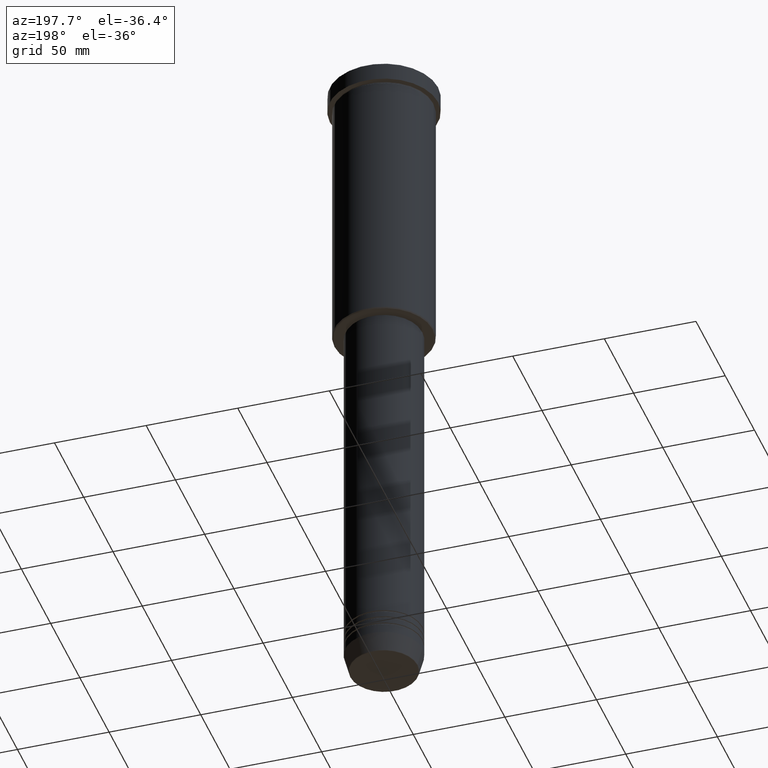
[diagram: clean part render]
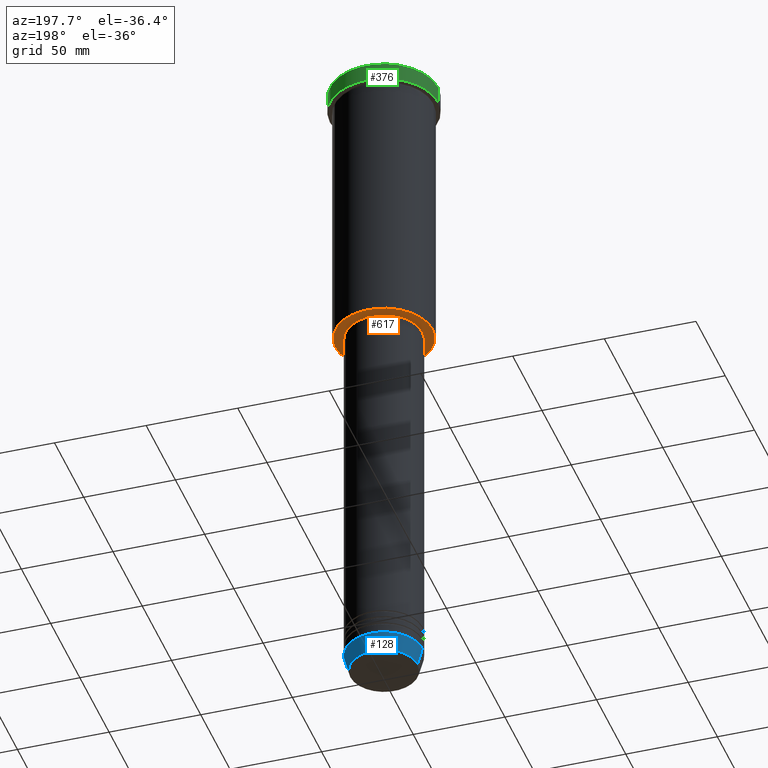
[diagram: same view with three faces highlighted in distinct colors, each labeled with its STEP entity id]
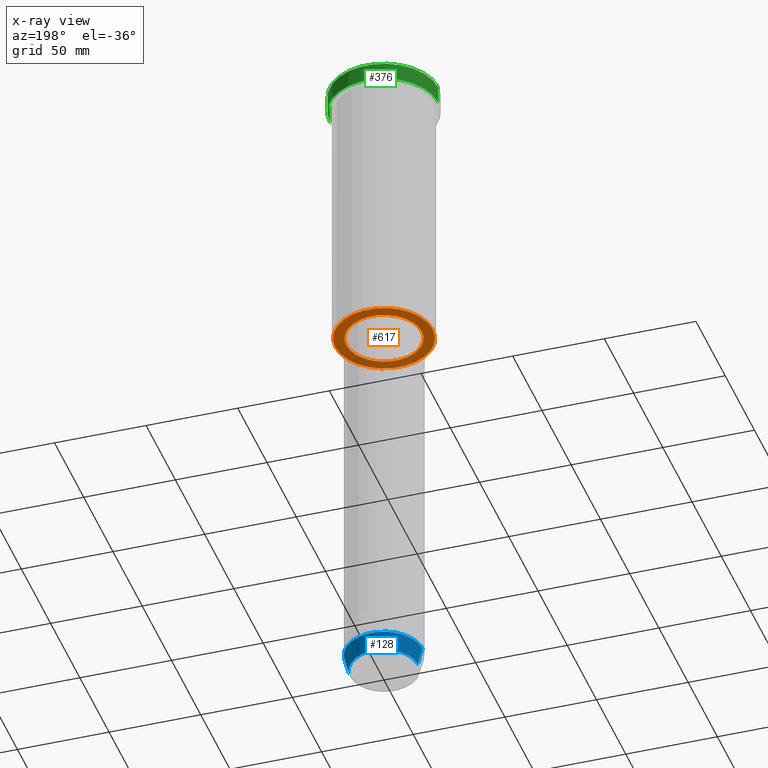
[diagram: x-ray of the same camera — body ghosted, the three highlighted faces saturated]
A machine part, auxiliary view with three faces highlighted in distinct colors.
The next image is the same camera in x-ray (body ghosted, the three faces saturated) — at least one of them is partly hidden behind the body in this view.
Their STEP definitions:

[orange] entity #617 — the highlighted planar face has unit normal (0, 0, -1).
#16 = VERTEX_POINT ( 'NONE', #1084 ) ;
#28 = DIRECTION ( 'NONE',  ( 1.000000000000000000, 0.000000000000000000, 0.000000000000000000 ) ) ;
#52 = CIRCLE ( 'NONE', #536, 26.50000000000002487 ) ;
#72 = AXIS2_PLACEMENT_3D ( 'NONE', #133, #590, #868 ) ;
#77 = CARTESIAN_POINT ( 'NONE',  ( 0.000000000000000000, 0.000000000000000000, -155.9999999999999716 ) ) ;
#133 = CARTESIAN_POINT ( 'NONE',  ( 0.000000000000000000, 0.000000000000000000, -155.9999999999999716 ) ) ;
#179 = EDGE_LOOP ( 'NONE', ( #529, #596 ) ) ;
#225 = AXIS2_PLACEMENT_3D ( 'NONE', #382, #644, #28 ) ;
#261 = VERTEX_POINT ( 'NONE', #308 ) ;
#271 = DIRECTION ( 'NONE',  ( -1.000000000000000000, 0.000000000000000000, 0.000000000000000000 ) ) ;
#275 = CARTESIAN_POINT ( 'NONE',  ( 0.000000000000000000, 27.00000000000000355, -155.9999999999999716 ) ) ;
#308 = CARTESIAN_POINT ( 'NONE',  ( 20.50000000000000000, 0.000000000000000000, -155.9999999999999716 ) ) ;
#345 = CARTESIAN_POINT ( 'NONE',  ( 0.000000000000000000, 0.000000000000000000, -155.9999999999999716 ) ) ;
#361 = VERTEX_POINT ( 'NONE', #1066 ) ;
#364 = ORIENTED_EDGE ( 'NONE', *, *, #604, .T. ) ;
#382 = CARTESIAN_POINT ( 'NONE',  ( 0.000000000000000000, 0.000000000000000000, -155.9999999999999716 ) ) ;
#414 = CIRCLE ( 'NONE', #72, 20.50000000000000000 ) ;
#426 = FACE_BOUND ( 'NONE', #179, .T. ) ;
#450 = CIRCLE ( 'NONE', #225, 20.50000000000000000 ) ;
#480 = CIRCLE ( 'NONE', #769, 26.50000000000002487 ) ;
#522 = DIRECTION ( 'NONE',  ( -1.000000000000000000, 0.000000000000000000, 0.000000000000000000 ) ) ;
#529 = ORIENTED_EDGE ( 'NONE', *, *, #783, .T. ) ;
#536 = AXIS2_PLACEMENT_3D ( 'NONE', #345, #982, #271 ) ;
#590 = DIRECTION ( 'NONE',  ( -0.000000000000000000, -0.000000000000000000, 1.000000000000000000 ) ) ;
#596 = ORIENTED_EDGE ( 'NONE', *, *, #703, .T. ) ;
#604 = EDGE_CURVE ( 'NONE', #16, #1077, #52, .T. ) ;
#617 = ADVANCED_FACE ( 'NONE', ( #813, #426 ), #1158, .T. ) ;
#620 = DIRECTION ( 'NONE',  ( 0.000000000000000000, 0.000000000000000000, -1.000000000000000000 ) ) ;
#644 = DIRECTION ( 'NONE',  ( -0.000000000000000000, -0.000000000000000000, 1.000000000000000000 ) ) ;
#703 = EDGE_CURVE ( 'NONE', #361, #261, #414, .T. ) ;
#713 = DIRECTION ( 'NONE',  ( 0.000000000000000000, 0.000000000000000000, -1.000000000000000000 ) ) ;
#769 = AXIS2_PLACEMENT_3D ( 'NONE', #77, #620, #522 ) ;
#783 = EDGE_CURVE ( 'NONE', #261, #361, #450, .T. ) ;
#813 = FACE_OUTER_BOUND ( 'NONE', #887, .T. ) ;
#868 = DIRECTION ( 'NONE',  ( 1.000000000000000000, 0.000000000000000000, 0.000000000000000000 ) ) ;
#887 = EDGE_LOOP ( 'NONE', ( #364, #1122 ) ) ;
#926 = EDGE_CURVE ( 'NONE', #1077, #16, #480, .T. ) ;
#982 = DIRECTION ( 'NONE',  ( 0.000000000000000000, 0.000000000000000000, -1.000000000000000000 ) ) ;
#1001 = DIRECTION ( 'NONE',  ( -1.000000000000000000, 0.000000000000000000, -0.000000000000000000 ) ) ;
#1060 = AXIS2_PLACEMENT_3D ( 'NONE', #275, #713, #1001 ) ;
#1066 = CARTESIAN_POINT ( 'NONE',  ( -20.50000000000000000, 2.510525938252074481E-15, -155.9999999999999716 ) ) ;
#1077 = VERTEX_POINT ( 'NONE', #1106 ) ;
#1084 = CARTESIAN_POINT ( 'NONE',  ( 26.50000000000002487, 0.000000000000000000, -155.9999999999999716 ) ) ;
#1106 = CARTESIAN_POINT ( 'NONE',  ( -26.50000000000002487, 3.275930187719171524E-15, -155.9999999999999716 ) ) ;
#1122 = ORIENTED_EDGE ( 'NONE', *, *, #926, .T. ) ;
#1158 = PLANE ( 'NONE',  #1060 ) ;

[blue] entity #128 — the highlighted conical surface has half-angle 15 deg.
#4 = CARTESIAN_POINT ( 'NONE',  ( -21.00000000000000000, 2.571758278209441661E-15, -361.0000000000000000 ) ) ;
#70 = EDGE_CURVE ( 'NONE', #487, #103, #770, .T. ) ;
#103 = VERTEX_POINT ( 'NONE', #557 ) ;
#118 = CARTESIAN_POINT ( 'NONE',  ( 0.000000000000000000, 0.000000000000000000, -370.6294095225512706 ) ) ;
#127 = VECTOR ( 'NONE', #138, 1000.000000000000114 ) ;
#128 = ADVANCED_FACE ( 'NONE', ( #662 ), #1052, .T. ) ;
#137 = ORIENTED_EDGE ( 'NONE', *, *, #545, .F. ) ;
#138 = DIRECTION ( 'NONE',  ( 0.2588190451025211836, 0.000000000000000000, 0.9659258262890680902 ) ) ;
#172 = VERTEX_POINT ( 'NONE', #279 ) ;
#212 = DIRECTION ( 'NONE',  ( 1.000000000000000000, 0.000000000000000000, 0.000000000000000000 ) ) ;
#233 = LINE ( 'NONE', #586, #127 ) ;
#246 = VECTOR ( 'NONE', #812, 1000.000000000000114 ) ;
#279 = CARTESIAN_POINT ( 'NONE',  ( 21.00000000000000000, 0.000000000000000000, -361.0000000000000000 ) ) ;
#348 = ORIENTED_EDGE ( 'NONE', *, *, #70, .T. ) ;
#350 = AXIS2_PLACEMENT_3D ( 'NONE', #118, #388, #212 ) ;
#355 = ORIENTED_EDGE ( 'NONE', *, *, #1035, .T. ) ;
#388 = DIRECTION ( 'NONE',  ( -0.000000000000000000, -0.000000000000000000, 1.000000000000000000 ) ) ;
#446 = EDGE_CURVE ( 'NONE', #172, #891, #1075, .T. ) ;
#487 = VERTEX_POINT ( 'NONE', #581 ) ;
#512 = AXIS2_PLACEMENT_3D ( 'NONE', #1014, #930, #912 ) ;
#545 = EDGE_CURVE ( 'NONE', #487, #172, #233, .T. ) ;
#557 = CARTESIAN_POINT ( 'NONE',  ( -18.41980749484383750, 2.413767053578267458E-15, -370.6294095225512706 ) ) ;
#581 = CARTESIAN_POINT ( 'NONE',  ( 18.41980749484383750, 0.000000000000000000, -370.6294095225512706 ) ) ;
#586 = CARTESIAN_POINT ( 'NONE',  ( 21.00000000000000000, 0.000000000000000000, -361.0000000000000000 ) ) ;
#662 = FACE_OUTER_BOUND ( 'NONE', #732, .T. ) ;
#732 = EDGE_LOOP ( 'NONE', ( #348, #355, #772, #137 ) ) ;
#770 = CIRCLE ( 'NONE', #350, 18.41980749484383750 ) ;
#772 = ORIENTED_EDGE ( 'NONE', *, *, #446, .F. ) ;
#812 = DIRECTION ( 'NONE',  ( -0.2588190451025211836, 3.169619151431770488E-17, 0.9659258262890680902 ) ) ;
#827 = LINE ( 'NONE', #4, #246 ) ;
#891 = VERTEX_POINT ( 'NONE', #939 ) ;
#912 = DIRECTION ( 'NONE',  ( 1.000000000000000000, 0.000000000000000000, 0.000000000000000000 ) ) ;
#930 = DIRECTION ( 'NONE',  ( -0.000000000000000000, -0.000000000000000000, 1.000000000000000000 ) ) ;
#939 = CARTESIAN_POINT ( 'NONE',  ( -21.00000000000000000, 2.571758278209441661E-15, -361.0000000000000000 ) ) ;
#1014 = CARTESIAN_POINT ( 'NONE',  ( 0.000000000000000000, 0.000000000000000000, -361.0000000000000000 ) ) ;
#1022 = AXIS2_PLACEMENT_3D ( 'NONE', #1041, #1144, #1033 ) ;
#1033 = DIRECTION ( 'NONE',  ( 1.000000000000000000, 0.000000000000000000, 0.000000000000000000 ) ) ;
#1035 = EDGE_CURVE ( 'NONE', #103, #891, #827, .T. ) ;
#1041 = CARTESIAN_POINT ( 'NONE',  ( 0.000000000000000000, 0.000000000000000000, -361.0000000000000000 ) ) ;
#1052 = CONICAL_SURFACE ( 'NONE', #512, 21.00000000000000000, 0.2617993877991499074 ) ;
#1075 = CIRCLE ( 'NONE', #1022, 21.00000000000000000 ) ;
#1144 = DIRECTION ( 'NONE',  ( -0.000000000000000000, -0.000000000000000000, 1.000000000000000000 ) ) ;

[green] entity #376 — the highlighted cylindrical surface (partial cylindrical patch) has radius 29.5 mm, axis along (-0, -0, 1).
#19 = CARTESIAN_POINT ( 'NONE',  ( -29.50000000000000000, 3.612708057484691604E-15, -0.5000000000000004441 ) ) ;
#76 = VERTEX_POINT ( 'NONE', #814 ) ;
#115 = ORIENTED_EDGE ( 'NONE', *, *, #569, .T. ) ;
#244 = VECTOR ( 'NONE', #602, 1000.000000000000000 ) ;
#284 = CARTESIAN_POINT ( 'NONE',  ( 29.50000000000000000, 0.000000000000000000, -9.999999999999992895 ) ) ;
#285 = CIRCLE ( 'NONE', #397, 29.50000000000000000 ) ;
#369 = DIRECTION ( 'NONE',  ( 1.000000000000000000, 0.000000000000000000, 0.000000000000000000 ) ) ;
#376 = ADVANCED_FACE ( 'NONE', ( #1061 ), #787, .T. ) ;
#397 = AXIS2_PLACEMENT_3D ( 'NONE', #561, #1182, #369 ) ;
#413 = ORIENTED_EDGE ( 'NONE', *, *, #439, .T. ) ;
#419 = LINE ( 'NONE', #974, #553 ) ;
#439 = EDGE_CURVE ( 'NONE', #777, #865, #449, .T. ) ;
#449 = CIRCLE ( 'NONE', #925, 29.50000000000000000 ) ;
#496 = LINE ( 'NONE', #860, #244 ) ;
#548 = EDGE_CURVE ( 'NONE', #777, #76, #496, .T. ) ;
#553 = VECTOR ( 'NONE', #781, 1000.000000000000000 ) ;
#561 = CARTESIAN_POINT ( 'NONE',  ( 0.000000000000000000, 0.000000000000000000, -0.5000000000000004441 ) ) ;
#569 = EDGE_CURVE ( 'NONE', #865, #796, #419, .T. ) ;
#585 = CARTESIAN_POINT ( 'NONE',  ( -29.50000000000000000, 3.612708057484691604E-15, -9.999999999999992895 ) ) ;
#602 = DIRECTION ( 'NONE',  ( -0.000000000000000000, -0.000000000000000000, 1.000000000000000000 ) ) ;
#603 = DIRECTION ( 'NONE',  ( -0.000000000000000000, -0.000000000000000000, 1.000000000000000000 ) ) ;
#609 = CARTESIAN_POINT ( 'NONE',  ( 0.000000000000000000, 0.000000000000000000, 0.000000000000000000 ) ) ;
#642 = DIRECTION ( 'NONE',  ( 1.000000000000000000, 0.000000000000000000, 0.000000000000000000 ) ) ;
#657 = AXIS2_PLACEMENT_3D ( 'NONE', #609, #603, #1160 ) ;
#777 = VERTEX_POINT ( 'NONE', #284 ) ;
#781 = DIRECTION ( 'NONE',  ( -0.000000000000000000, -0.000000000000000000, 1.000000000000000000 ) ) ;
#782 = EDGE_LOOP ( 'NONE', ( #413, #115, #1181, #1037 ) ) ;
#787 = CYLINDRICAL_SURFACE ( 'NONE', #657, 29.50000000000000000 ) ;
#796 = VERTEX_POINT ( 'NONE', #19 ) ;
#814 = CARTESIAN_POINT ( 'NONE',  ( 29.50000000000000000, 0.000000000000000000, -0.5000000000000004441 ) ) ;
#860 = CARTESIAN_POINT ( 'NONE',  ( 29.50000000000000000, 0.000000000000000000, 0.000000000000000000 ) ) ;
#865 = VERTEX_POINT ( 'NONE', #585 ) ;
#901 = CARTESIAN_POINT ( 'NONE',  ( 0.000000000000000000, 0.000000000000000000, -9.999999999999992895 ) ) ;
#925 = AXIS2_PLACEMENT_3D ( 'NONE', #901, #1088, #642 ) ;
#974 = CARTESIAN_POINT ( 'NONE',  ( -29.50000000000000000, 3.612708057484691604E-15, 0.000000000000000000 ) ) ;
#1037 = ORIENTED_EDGE ( 'NONE', *, *, #548, .F. ) ;
#1045 = EDGE_CURVE ( 'NONE', #796, #76, #285, .T. ) ;
#1061 = FACE_OUTER_BOUND ( 'NONE', #782, .T. ) ;
#1088 = DIRECTION ( 'NONE',  ( -0.000000000000000000, -0.000000000000000000, 1.000000000000000000 ) ) ;
#1160 = DIRECTION ( 'NONE',  ( 1.000000000000000000, 0.000000000000000000, 0.000000000000000000 ) ) ;
#1181 = ORIENTED_EDGE ( 'NONE', *, *, #1045, .T. ) ;
#1182 = DIRECTION ( 'NONE',  ( 0.000000000000000000, 0.000000000000000000, -1.000000000000000000 ) ) ;